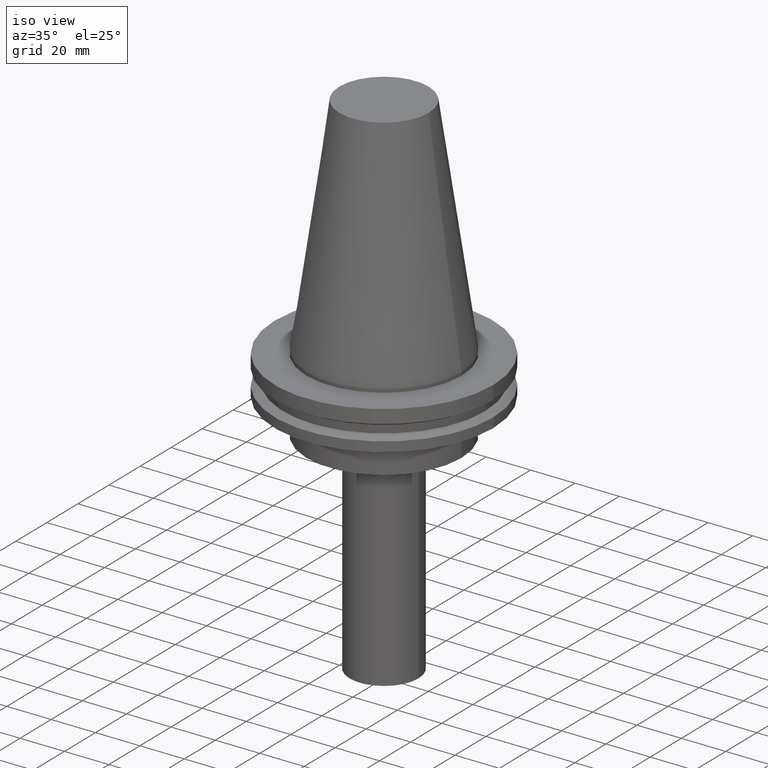
[diagram: clean part render]
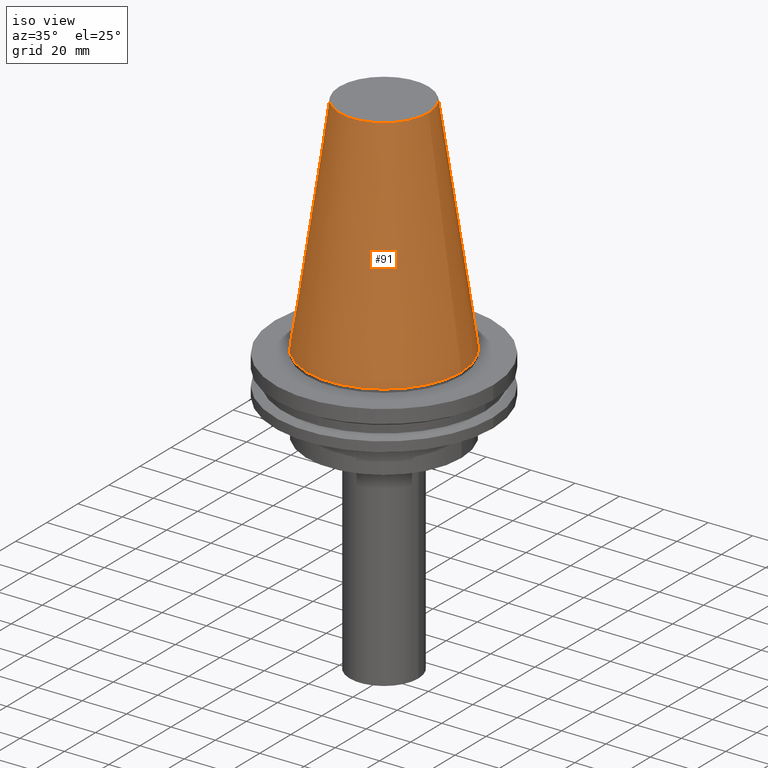
[diagram: same view with one face highlighted and labeled with its STEP entity id]
A machine part, iso view. The second image highlights one B-rep face of the part: STEP entity #91.
In plain terms, the highlighted conical surface has half-angle 8.297 deg.
Its self-contained STEP definition (entity closure, byte-faithful):
#19 = EDGE_CURVE ( 'NONE', #77, #77, #297, .T. ) ;
#44 = VERTEX_POINT ( 'NONE', #161 ) ;
#46 = CARTESIAN_POINT ( 'NONE',  ( 34.92499999999999005, 0.000000000000000000, 0.000000000000000000 ) ) ;
#58 = CARTESIAN_POINT ( 'NONE',  ( 0.000000000000000000, 0.000000000000000000, 0.000000000000000000 ) ) ;
#77 = VERTEX_POINT ( 'NONE', #46 ) ;
#91 = ADVANCED_FACE ( 'NONE', ( #275, #304 ), #308, .T. ) ;
#106 = EDGE_LOOP ( 'NONE', ( #138 ) ) ;
#116 = DIRECTION ( 'NONE',  ( -0.000000000000000000, -0.000000000000000000, 1.000000000000000000 ) ) ;
#138 = ORIENTED_EDGE ( 'NONE', *, *, #201, .F. ) ;
#161 = CARTESIAN_POINT ( 'NONE',  ( 20.10819343178871321, 0.000000000000000000, 101.5999999999999801 ) ) ;
#170 = DIRECTION ( 'NONE',  ( -0.000000000000000000, -0.000000000000000000, 1.000000000000000000 ) ) ;
#178 = CARTESIAN_POINT ( 'NONE',  ( 0.000000000000000000, 0.000000000000000000, 101.5999999999999801 ) ) ;
#179 = DIRECTION ( 'NONE',  ( -1.000000000000000000, 0.000000000000000000, 0.000000000000000000 ) ) ;
#191 = AXIS2_PLACEMENT_3D ( 'NONE', #58, #206, #179 ) ;
#201 = EDGE_CURVE ( 'NONE', #44, #44, #346, .T. ) ;
#206 = DIRECTION ( 'NONE',  ( 0.000000000000000000, 0.000000000000000000, -1.000000000000000000 ) ) ;
#236 = DIRECTION ( 'NONE',  ( 1.000000000000000000, 0.000000000000000000, 0.000000000000000000 ) ) ;
#269 = DIRECTION ( 'NONE',  ( 1.000000000000000000, 0.000000000000000000, 0.000000000000000000 ) ) ;
#275 = FACE_BOUND ( 'NONE', #106, .T. ) ;
#281 = AXIS2_PLACEMENT_3D ( 'NONE', #295, #170, #269 ) ;
#295 = CARTESIAN_POINT ( 'NONE',  ( 0.000000000000000000, 0.000000000000000000, 0.000000000000000000 ) ) ;
#297 = CIRCLE ( 'NONE', #281, 34.92499999999999005 ) ;
#304 = FACE_OUTER_BOUND ( 'NONE', #320, .T. ) ;
#308 = CONICAL_SURFACE ( 'NONE', #191, 34.92499999999999005, 0.1448138465474119452 ) ;
#320 = EDGE_LOOP ( 'NONE', ( #354 ) ) ;
#346 = CIRCLE ( 'NONE', #378, 20.10819343178871321 ) ;
#354 = ORIENTED_EDGE ( 'NONE', *, *, #19, .T. ) ;
#378 = AXIS2_PLACEMENT_3D ( 'NONE', #178, #116, #236 ) ;